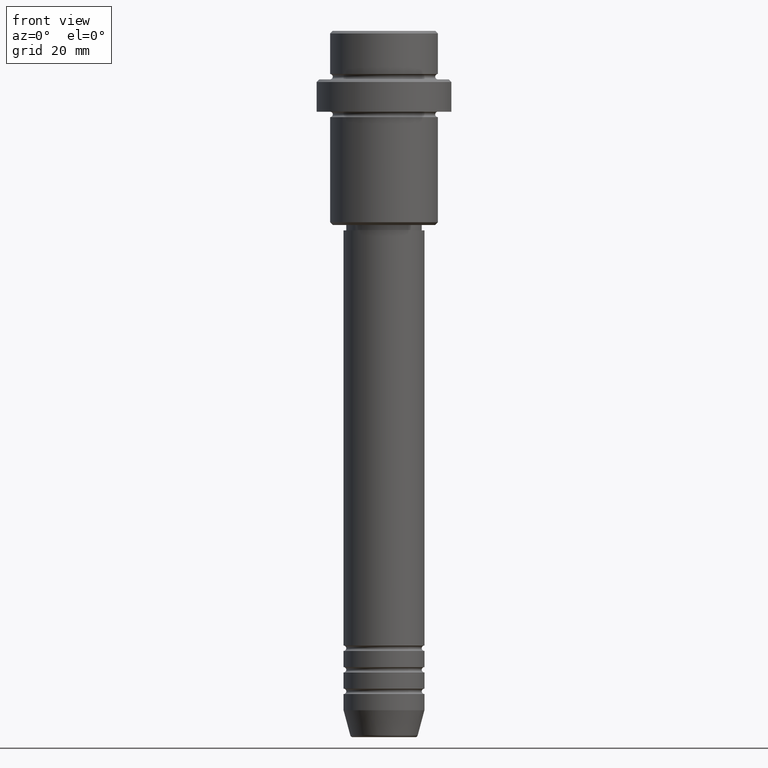
[diagram: clean part render]
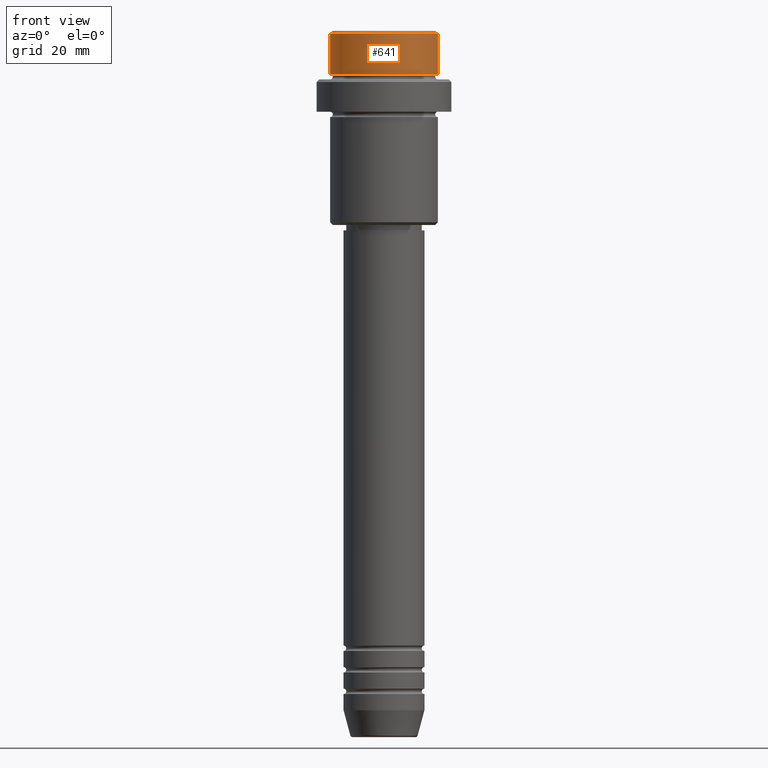
[diagram: same view with one face highlighted and labeled with its STEP entity id]
A machine part, front view. The second image highlights one B-rep face of the part: STEP entity #641.
In plain terms, the highlighted cylindrical surface (partial cylindrical patch) has radius 10 mm, axis along (-0, -0, 1).
Its self-contained STEP definition (entity closure, byte-faithful):
#7 = ORIENTED_EDGE ( 'NONE', *, *, #546, .F. ) ;
#61 = DIRECTION ( 'NONE',  ( -0.000000000000000000, -0.000000000000000000, 1.000000000000000000 ) ) ;
#84 = CARTESIAN_POINT ( 'NONE',  ( 0.000000000000000000, 0.000000000000000000, 0.000000000000000000 ) ) ;
#103 = VERTEX_POINT ( 'NONE', #716 ) ;
#118 = CIRCLE ( 'NONE', #875, 9.999999999999998224 ) ;
#139 = DIRECTION ( 'NONE',  ( 1.000000000000000000, 0.000000000000000000, 0.000000000000000000 ) ) ;
#194 = VECTOR ( 'NONE', #794, 1000.000000000000000 ) ;
#239 = DIRECTION ( 'NONE',  ( -0.000000000000000000, -0.000000000000000000, 1.000000000000000000 ) ) ;
#249 = DIRECTION ( 'NONE',  ( 0.000000000000000000, 0.000000000000000000, -1.000000000000000000 ) ) ;
#271 = EDGE_CURVE ( 'NONE', #103, #273, #1192, .T. ) ;
#273 = VERTEX_POINT ( 'NONE', #557 ) ;
#323 = DIRECTION ( 'NONE',  ( 1.000000000000000000, 0.000000000000000000, 0.000000000000000000 ) ) ;
#423 = EDGE_LOOP ( 'NONE', ( #7, #1252, #1019, #1108 ) ) ;
#546 = EDGE_CURVE ( 'NONE', #624, #996, #1036, .T. ) ;
#557 = CARTESIAN_POINT ( 'NONE',  ( 9.999999999999998224, 0.000000000000000000, -0.4999999999999831246 ) ) ;
#572 = CARTESIAN_POINT ( 'NONE',  ( -9.999999999999998224, 1.224646799147353059E-15, 0.000000000000000000 ) ) ;
#624 = VERTEX_POINT ( 'NONE', #723 ) ;
#641 = ADVANCED_FACE ( 'NONE', ( #1058 ), #1048, .T. ) ;
#716 = CARTESIAN_POINT ( 'NONE',  ( 9.999999999999998224, 0.000000000000000000, -7.999999999999998224 ) ) ;
#723 = CARTESIAN_POINT ( 'NONE',  ( -9.999999999999998224, 1.224646799147353059E-15, -7.999999999999998224 ) ) ;
#794 = DIRECTION ( 'NONE',  ( -0.000000000000000000, -0.000000000000000000, 1.000000000000000000 ) ) ;
#799 = EDGE_CURVE ( 'NONE', #624, #103, #118, .T. ) ;
#801 = CARTESIAN_POINT ( 'NONE',  ( 0.000000000000000000, 0.000000000000000000, -7.999999999999998224 ) ) ;
#875 = AXIS2_PLACEMENT_3D ( 'NONE', #801, #1190, #323 ) ;
#896 = VECTOR ( 'NONE', #239, 1000.000000000000000 ) ;
#902 = CIRCLE ( 'NONE', #1325, 9.999999999999998224 ) ;
#996 = VERTEX_POINT ( 'NONE', #1310 ) ;
#1019 = ORIENTED_EDGE ( 'NONE', *, *, #271, .T. ) ;
#1036 = LINE ( 'NONE', #572, #194 ) ;
#1040 = AXIS2_PLACEMENT_3D ( 'NONE', #84, #61, #1164 ) ;
#1048 = CYLINDRICAL_SURFACE ( 'NONE', #1040, 9.999999999999998224 ) ;
#1058 = FACE_OUTER_BOUND ( 'NONE', #423, .T. ) ;
#1059 = EDGE_CURVE ( 'NONE', #273, #996, #902, .T. ) ;
#1108 = ORIENTED_EDGE ( 'NONE', *, *, #1059, .T. ) ;
#1164 = DIRECTION ( 'NONE',  ( 1.000000000000000000, 0.000000000000000000, 0.000000000000000000 ) ) ;
#1190 = DIRECTION ( 'NONE',  ( -0.000000000000000000, -0.000000000000000000, 1.000000000000000000 ) ) ;
#1192 = LINE ( 'NONE', #1309, #896 ) ;
#1206 = CARTESIAN_POINT ( 'NONE',  ( 0.000000000000000000, 0.000000000000000000, -0.4999999999999831246 ) ) ;
#1252 = ORIENTED_EDGE ( 'NONE', *, *, #799, .T. ) ;
#1309 = CARTESIAN_POINT ( 'NONE',  ( 9.999999999999998224, 0.000000000000000000, 0.000000000000000000 ) ) ;
#1310 = CARTESIAN_POINT ( 'NONE',  ( -9.999999999999998224, 1.224646799147353059E-15, -0.4999999999999831246 ) ) ;
#1325 = AXIS2_PLACEMENT_3D ( 'NONE', #1206, #249, #139 ) ;